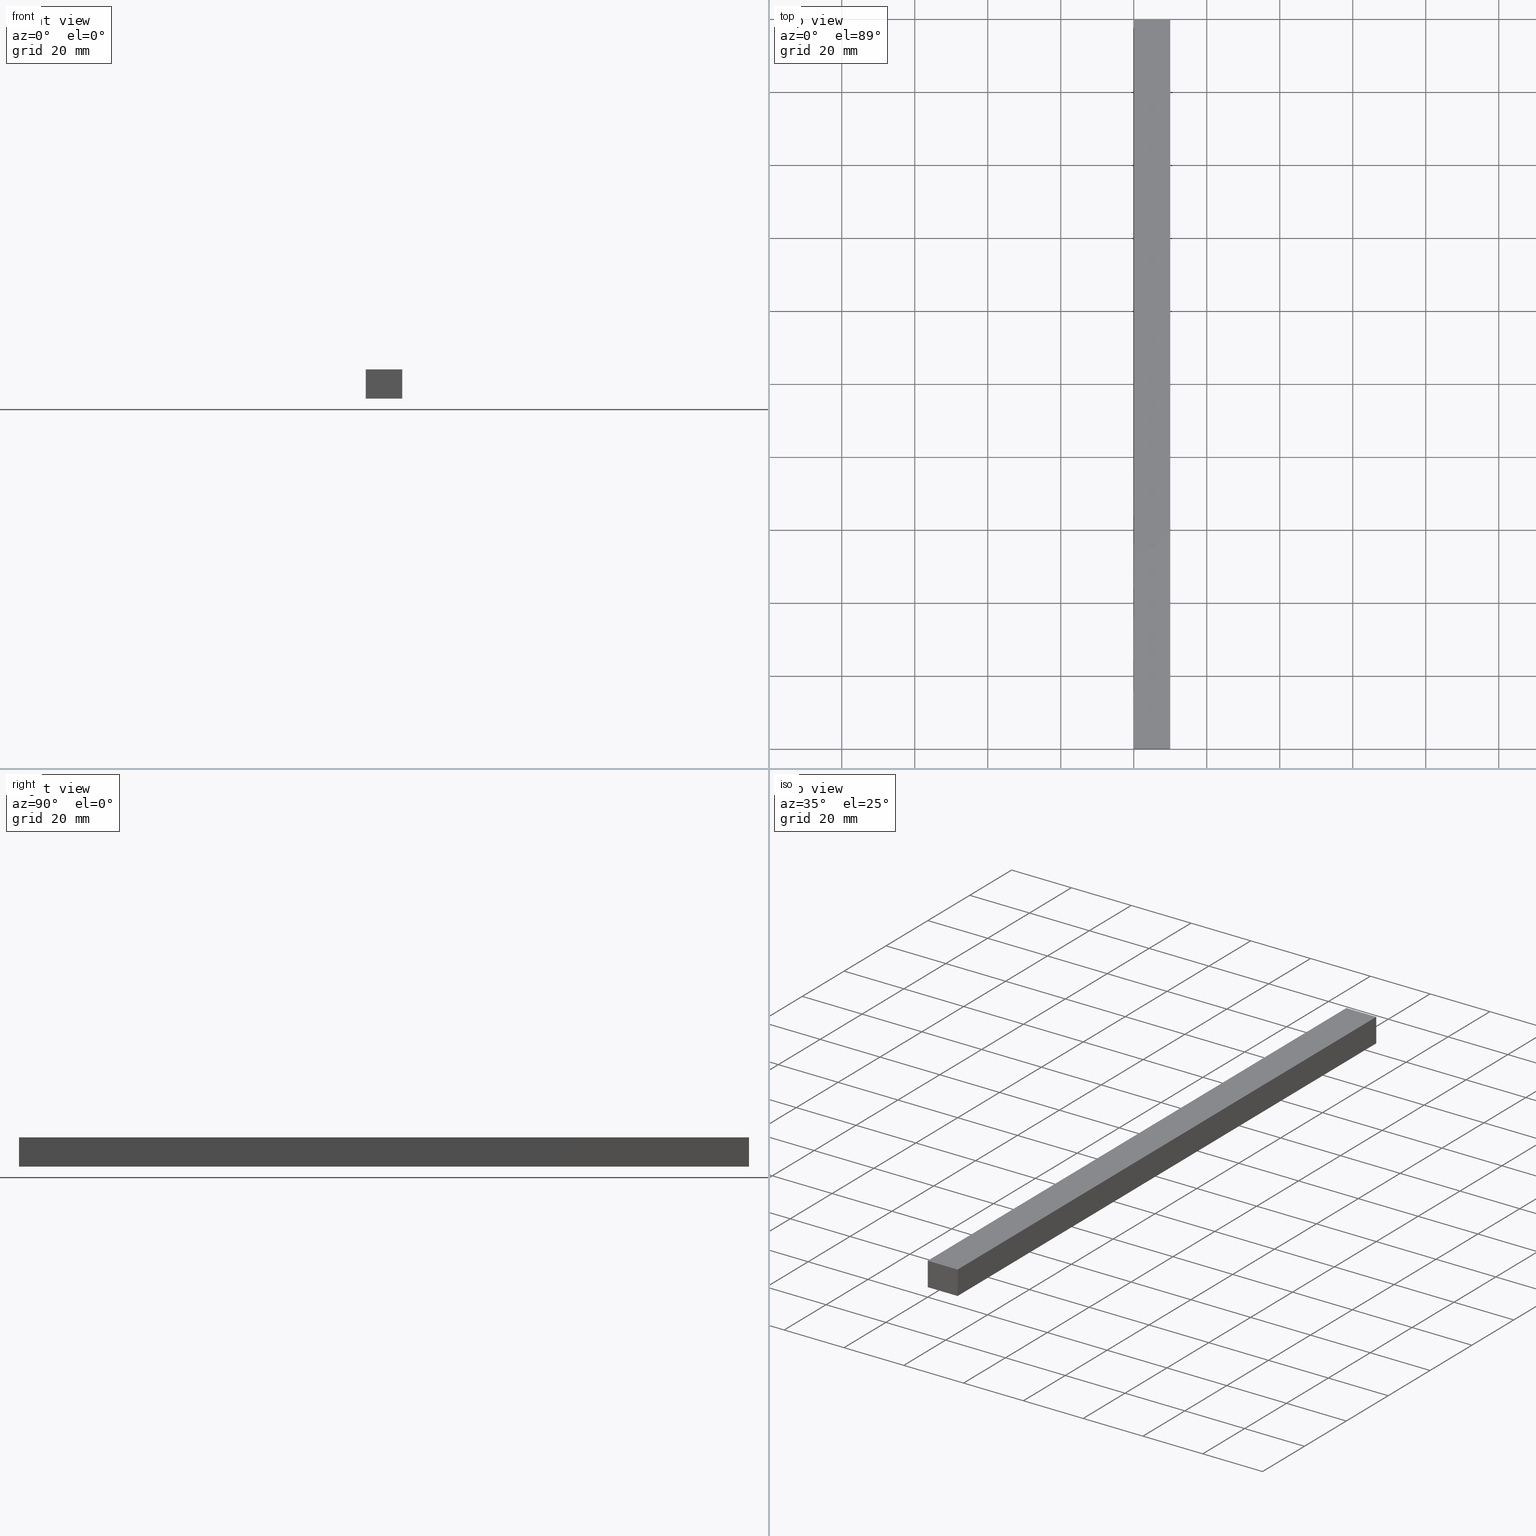
[diagram: canonical four-view strip — front | top / right | iso, engineering-drawing reading convention]
A machine part, canonical four-view strip (front | top / right | iso — engineering-drawing reading convention). The complete STEP part file that produces these views, byte-faithful:
ISO-10303-21;
HEADER;
FILE_DESCRIPTION (( 'STEP AP214' ),
    '1' );
FILE_NAME ('TM_339_8_10.STEP',
    '2016-05-09T04:30:46',
    ( '' ),
    ( '' ),
    'SwSTEP 2.0',
    'SolidWorks 2015',
    '' );
FILE_SCHEMA (( 'AUTOMOTIVE_DESIGN' ));
ENDSEC;

DATA;
#1 = LINE ( 'NONE', #70, #208 ) ;
#2 = EDGE_LOOP ( 'NONE', ( #189, #218, #87, #20 ) ) ;
#3 = ORIENTED_EDGE ( 'NONE', *, *, #96, .T. ) ;
#4 = AXIS2_PLACEMENT_3D ( 'NONE', #200, #177, #179 ) ;
#5 = FILL_AREA_STYLE ('',( #9 ) ) ;
#6 = LINE ( 'NONE', #137, #202 ) ;
#7 = VERTEX_POINT ( 'NONE', #26 ) ;
#8 = ORIENTED_EDGE ( 'NONE', *, *, #238, .F. ) ;
#9 = FILL_AREA_STYLE_COLOUR ( '', #169 ) ;
#10 = AXIS2_PLACEMENT_3D ( 'NONE', #119, #69, #13 ) ;
#11 = CARTESIAN_POINT ( 'NONE',  ( 0.0000000000000000000, 0.0000000000000000000, 0.0000000000000000000 ) ) ;
#12 = CARTESIAN_POINT ( 'NONE',  ( 0.0000000000000000000, 1000.000000000000000, 8.000000000000000000 ) ) ;
#13 = DIRECTION ( 'NONE',  ( 1.000000000000000000, 0.0000000000000000000, 0.0000000000000000000 ) ) ;
#14 = EDGE_CURVE ( 'NONE', #190, #72, #210, .T. ) ;
#15 = CARTESIAN_POINT ( 'NONE',  ( 0.0000000000000000000, 200.0000000000000000, 8.000000000000000000 ) ) ;
#16 = LINE ( 'NONE', #160, #207 ) ;
#17 = CARTESIAN_POINT ( 'NONE',  ( 0.0000000000000000000, 200.0000000000000000, 0.0000000000000000000 ) ) ;
#18 = APPLICATION_PROTOCOL_DEFINITION ( 'draft international standard', 'automotive_design', 1998, #138 ) ;
#19 = LINE ( 'NONE', #15, #142 ) ;
#20 = ORIENTED_EDGE ( 'NONE', *, *, #162, .F. ) ;
#21 = UNCERTAINTY_MEASURE_WITH_UNIT (LENGTH_MEASURE( 1.000000000000000100E-005 ), #167, 'distance_accuracy_value', 'NONE');
#22 =( NAMED_UNIT ( * ) SI_UNIT ( $, .STERADIAN. ) SOLID_ANGLE_UNIT ( ) );
#23 = PRESENTATION_LAYER_ASSIGNMENT (  '', '', ( #48 ) ) ;
#24 =( GEOMETRIC_REPRESENTATION_CONTEXT ( 3 ) GLOBAL_UNCERTAINTY_ASSIGNED_CONTEXT ( ( #188 ) ) GLOBAL_UNIT_ASSIGNED_CONTEXT ( ( #77, #212, #97 ) ) REPRESENTATION_CONTEXT ( 'NONE', 'WORKASPACE' ) );
#25 = SHAPE_REPRESENTATION ( 'TM_339_8_10', ( #89, #145 ), #159 ) ;
#26 = CARTESIAN_POINT ( 'NONE',  ( 10.00000000000000000, 200.0000000000000000, 8.000000000000000000 ) ) ;
#27 = SHAPE_REPRESENTATION ( 'rubber foam', ( #45 ), #24 ) ;
#28 = VERTEX_POINT ( 'NONE', #95 ) ;
#29 = ADVANCED_FACE ( 'NONE', ( #237 ), #172, .T. ) ;
#30 =( NAMED_UNIT ( * ) SI_UNIT ( $, .STERADIAN. ) SOLID_ANGLE_UNIT ( ) );
#31 = CARTESIAN_POINT ( 'NONE',  ( 0.0000000000000000000, 200.0000000000000000, 0.0000000000000000000 ) ) ;
#32 = DIRECTION ( 'NONE',  ( 0.0000000000000000000, -1.000000000000000000, 0.0000000000000000000 ) ) ;
#33 =( GEOMETRIC_REPRESENTATION_CONTEXT ( 3 ) GLOBAL_UNCERTAINTY_ASSIGNED_CONTEXT ( ( #98 ) ) GLOBAL_UNIT_ASSIGNED_CONTEXT ( ( #156, #78, #30 ) ) REPRESENTATION_CONTEXT ( 'NONE', 'WORKASPACE' ) );
#34 = LINE ( 'NONE', #178, #174 ) ;
#35 = CARTESIAN_POINT ( 'NONE',  ( 0.0000000000000000000, 0.0000000000000000000, 0.0000000000000000000 ) ) ;
#36 = PRODUCT_CONTEXT ( 'NONE', #51, 'mechanical' ) ;
#37 = AXIS2_PLACEMENT_3D ( 'NONE', #233, #181, #43 ) ;
#38 = VECTOR ( 'NONE', #215, 1000.000000000000000 ) ;
#39 = EDGE_CURVE ( 'NONE', #228, #28, #154, .T. ) ;
#40 = VERTEX_POINT ( 'NONE', #151 ) ;
#41 = LINE ( 'NONE', #217, #38 ) ;
#42 = ADVANCED_FACE ( 'NONE', ( #90 ), #173, .T. ) ;
#43 = DIRECTION ( 'NONE',  ( 1.000000000000000000, 0.0000000000000000000, 0.0000000000000000000 ) ) ;
#44 = ORIENTED_EDGE ( 'NONE', *, *, #124, .T. ) ;
#45 = AXIS2_PLACEMENT_3D ( 'NONE', #35, #136, #216 ) ;
#46 = DIRECTION ( 'NONE',  ( -0.0000000000000000000, 1.000000000000000000, 0.0000000000000000000 ) ) ;
#47 = PLANE ( 'NONE',  #37 ) ;
#48 = STYLED_ITEM ( 'NONE', ( #192 ), #165 ) ;
#49 = EDGE_CURVE ( 'NONE', #40, #143, #54, .T. ) ;
#50 = SURFACE_STYLE_USAGE ( .BOTH. , #122 ) ;
#51 = APPLICATION_CONTEXT ( 'automotive_design' ) ;
#52 = ITEM_DEFINED_TRANSFORMATION ( 'NONE', 'NONE', #145,  #45 ) ;
#53 = DIRECTION ( 'NONE',  ( 1.000000000000000000, 0.0000000000000000000, 0.0000000000000000000 ) ) ;
#54 = LINE ( 'NONE', #120, #66 ) ;
#55 = ORIENTED_EDGE ( 'NONE', *, *, #187, .T. ) ;
#56 = ORIENTED_EDGE ( 'NONE', *, *, #187, .F. ) ;
#57 = APPLICATION_PROTOCOL_DEFINITION ( 'draft international standard', 'automotive_design', 1998, #168 ) ;
#58 = UNCERTAINTY_MEASURE_WITH_UNIT (LENGTH_MEASURE( 1.000000000000000100E-005 ), #226, 'distance_accuracy_value', 'NONE');
#59 = FACE_OUTER_BOUND ( 'NONE', #209, .T. ) ;
#60 = ORIENTED_EDGE ( 'NONE', *, *, #49, .T. ) ;
#61 = ORIENTED_EDGE ( 'NONE', *, *, #64, .T. ) ;
#62 = STYLED_ITEM ( 'NONE', ( #76 ), #225 ) ;
#63 = VECTOR ( 'NONE', #32, 1000.000000000000000 ) ;
#64 = EDGE_CURVE ( 'NONE', #143, #228, #6, .T. ) ;
#65 = PRODUCT_DEFINITION_SHAPE ( 'NONE', 'NONE',  #129 ) ;
#66 = VECTOR ( 'NONE', #118, 1000.000000000000000 ) ;
#67 = DIRECTION ( 'NONE',  ( -0.0000000000000000000, -0.0000000000000000000, -1.000000000000000000 ) ) ;
#68 = PRODUCT_DEFINITION_CONTEXT ( 'detailed design', #168, 'design' ) ;
#69 = DIRECTION ( 'NONE',  ( 0.0000000000000000000, 0.0000000000000000000, 1.000000000000000000 ) ) ;
#70 = CARTESIAN_POINT ( 'NONE',  ( 0.0000000000000000000, 1000.000000000000000, 0.0000000000000000000 ) ) ;
#71 = DIRECTION ( 'NONE',  ( 0.0000000000000000000, 0.0000000000000000000, 1.000000000000000000 ) ) ;
#72 = VERTEX_POINT ( 'NONE', #229 ) ;
#73 = CARTESIAN_POINT ( 'NONE',  ( 0.0000000000000000000, 0.0000000000000000000, 0.0000000000000000000 ) ) ;
#74 = PRESENTATION_LAYER_ASSIGNMENT (  '', '', ( #62 ) ) ;
#75 = EDGE_CURVE ( 'NONE', #7, #91, #19, .T. ) ;
#76 = PRESENTATION_STYLE_ASSIGNMENT (( #50 ) ) ;
#77 =( LENGTH_UNIT ( ) NAMED_UNIT ( * ) SI_UNIT ( .MILLI., .METRE. ) );
#78 =( NAMED_UNIT ( * ) PLANE_ANGLE_UNIT ( ) SI_UNIT ( $, .RADIAN. ) );
#79 = DIRECTION ( 'NONE',  ( -0.0000000000000000000, -0.0000000000000000000, 1.000000000000000000 ) ) ;
#80 = MECHANICAL_DESIGN_GEOMETRIC_PRESENTATION_REPRESENTATION (  '', ( #62 ), #93 ) ;
#81 = PLANE ( 'NONE',  #4 ) ;
#82 = LINE ( 'NONE', #31, #115 ) ;
#83 = FILL_AREA_STYLE_COLOUR ( '', #221 ) ;
#84 = DIRECTION ( 'NONE',  ( -1.000000000000000000, -0.0000000000000000000, -0.0000000000000000000 ) ) ;
#85 = DIRECTION ( 'NONE',  ( 0.0000000000000000000, -1.000000000000000000, 0.0000000000000000000 ) ) ;
#86 = DIRECTION ( 'NONE',  ( 0.0000000000000000000, 0.0000000000000000000, 1.000000000000000000 ) ) ;
#87 = ORIENTED_EDGE ( 'NONE', *, *, #75, .F. ) ;
#88 = PRODUCT_DEFINITION_SHAPE ( 'NONE', 'NONE',  #239 ) ;
#89 = AXIS2_PLACEMENT_3D ( 'NONE', #180, #195, #111 ) ;
#90 = FACE_OUTER_BOUND ( 'NONE', #2, .T. ) ;
#91 = VERTEX_POINT ( 'NONE', #123 ) ;
#92 = VECTOR ( 'NONE', #114, 1000.000000000000000 ) ;
#93 =( GEOMETRIC_REPRESENTATION_CONTEXT ( 3 ) GLOBAL_UNCERTAINTY_ASSIGNED_CONTEXT ( ( #58 ) ) GLOBAL_UNIT_ASSIGNED_CONTEXT ( ( #226, #102, #235 ) ) REPRESENTATION_CONTEXT ( 'NONE', 'WORKASPACE' ) );
#94 = DIRECTION ( 'NONE',  ( 0.0000000000000000000, 0.0000000000000000000, -1.000000000000000000 ) ) ;
#95 = CARTESIAN_POINT ( 'NONE',  ( 10.00000000000000000, 0.0000000000000000000, 8.000000000000000000 ) ) ;
#96 = EDGE_CURVE ( 'NONE', #190, #143, #1, .T. ) ;
#97 =( NAMED_UNIT ( * ) SI_UNIT ( $, .STERADIAN. ) SOLID_ANGLE_UNIT ( ) );
#98 = UNCERTAINTY_MEASURE_WITH_UNIT (LENGTH_MEASURE( 1.000000000000000100E-005 ), #156, 'distance_accuracy_value', 'NONE');
#99 = ADVANCED_FACE ( 'NONE', ( #59 ), #105, .T. ) ;
#100 = SHAPE_DEFINITION_REPRESENTATION ( #170, #27 ) ;
#101 = ORIENTED_EDGE ( 'NONE', *, *, #224, .F. ) ;
#102 =( NAMED_UNIT ( * ) PLANE_ANGLE_UNIT ( ) SI_UNIT ( $, .RADIAN. ) );
#103 = ORIENTED_EDGE ( 'NONE', *, *, #224, .T. ) ;
#104 = DIRECTION ( 'NONE',  ( -1.000000000000000000, -0.0000000000000000000, -0.0000000000000000000 ) ) ;
#105 = PLANE ( 'NONE',  #206 ) ;
#106 = DIRECTION ( 'NONE',  ( -0.0000000000000000000, -0.0000000000000000000, 1.000000000000000000 ) ) ;
#107 = PRODUCT_DEFINITION ( 'UNKNOWN', '', #171, #68 ) ;
#108 = VECTOR ( 'NONE', #106, 1000.000000000000000 ) ;
#109 = EDGE_LOOP ( 'NONE', ( #222, #197, #157, #185 ) ) ;
#110 = ORIENTED_EDGE ( 'NONE', *, *, #39, .F. ) ;
#111 = DIRECTION ( 'NONE',  ( 1.000000000000000000, 0.0000000000000000000, 0.0000000000000000000 ) ) ;
#112 = LINE ( 'NONE', #231, #63 ) ;
#113 = FACE_OUTER_BOUND ( 'NONE', #149, .T. ) ;
#114 = DIRECTION ( 'NONE',  ( 1.000000000000000000, -0.0000000000000000000, -0.0000000000000000000 ) ) ;
#115 = VECTOR ( 'NONE', #67, 1000.000000000000000 ) ;
#116 = EDGE_LOOP ( 'NONE', ( #110, #8, #198, #55 ) ) ;
#117 = ADVANCED_FACE ( 'NONE', ( #128 ), #81, .T. ) ;
#118 = DIRECTION ( 'NONE',  ( -0.0000000000000000000, -0.0000000000000000000, -1.000000000000000000 ) ) ;
#119 = CARTESIAN_POINT ( 'NONE',  ( 10.00000000000000000, 1000.000000000000000, 8.000000000000000000 ) ) ;
#120 = CARTESIAN_POINT ( 'NONE',  ( 0.0000000000000000000, 0.0000000000000000000, 0.0000000000000000000 ) ) ;
#121 = DIRECTION ( 'NONE',  ( 1.000000000000000000, -0.0000000000000000000, -0.0000000000000000000 ) ) ;
#122 = SURFACE_SIDE_STYLE ('',( #166 ) ) ;
#123 = CARTESIAN_POINT ( 'NONE',  ( 0.0000000000000000000, 200.0000000000000000, 8.000000000000000000 ) ) ;
#124 = EDGE_CURVE ( 'NONE', #28, #40, #223, .T. ) ;
#125 = APPLICATION_PROTOCOL_DEFINITION ( 'draft international standard', 'automotive_design', 1998, #220 ) ;
#126 = AXIS2_PLACEMENT_3D ( 'NONE', #199, #46, #232 ) ;
#127 =( REPRESENTATION_RELATIONSHIP ('NONE','NONE', #25, #27 ) REPRESENTATION_RELATIONSHIP_WITH_TRANSFORMATION ( #52 )SHAPE_REPRESENTATION_RELATIONSHIP( ) );
#128 = FACE_OUTER_BOUND ( 'NONE', #116, .T. ) ;
#129 = PRODUCT_DEFINITION ( 'UNKNOWN', '', #140, #201 ) ;
#130 = AXIS2_PLACEMENT_3D ( 'NONE', #219, #86, #205 ) ;
#131 = CARTESIAN_POINT ( 'NONE',  ( 0.0000000000000000000, 200.0000000000000000, 0.0000000000000000000 ) ) ;
#132 = AXIS2_PLACEMENT_3D ( 'NONE', #191, #94, #152 ) ;
#133 = SURFACE_SIDE_STYLE ('',( #182 ) ) ;
#134 = PLANE ( 'NONE',  #10 ) ;
#135 = ORIENTED_EDGE ( 'NONE', *, *, #75, .T. ) ;
#136 = DIRECTION ( 'NONE',  ( 0.0000000000000000000, 0.0000000000000000000, 1.000000000000000000 ) ) ;
#137 = CARTESIAN_POINT ( 'NONE',  ( 0.0000000000000000000, 0.0000000000000000000, 0.0000000000000000000 ) ) ;
#138 = APPLICATION_CONTEXT ( 'automotive_design' ) ;
#139 =( NAMED_UNIT ( * ) PLANE_ANGLE_UNIT ( ) SI_UNIT ( $, .RADIAN. ) );
#140 = PRODUCT_DEFINITION_FORMATION_WITH_SPECIFIED_SOURCE ( 'ANY', '', #211, .NOT_KNOWN. ) ;
#141 = CONTEXT_DEPENDENT_SHAPE_REPRESENTATION ( #127, #88 ) ;
#142 = VECTOR ( 'NONE', #84, 1000.000000000000000 ) ;
#143 = VERTEX_POINT ( 'NONE', #11 ) ;
#144 = ORIENTED_EDGE ( 'NONE', *, *, #49, .F. ) ;
#145 = AXIS2_PLACEMENT_3D ( 'NONE', #73, #183, #53 ) ;
#146 = EDGE_CURVE ( 'NONE', #91, #190, #82, .T. ) ;
#147 = SHAPE_DEFINITION_REPRESENTATION ( #65, #25 ) ;
#148 = SHAPE_REPRESENTATION_RELATIONSHIP ( 'NONE' , 'NONE' ,  #27, #225 ) ;
#149 = EDGE_LOOP ( 'NONE', ( #61, #204, #44, #60 ) ) ;
#150 = CLOSED_SHELL ( 'NONE', ( #29, #117, #176, #99, #42, #194 ) ) ;
#151 = CARTESIAN_POINT ( 'NONE',  ( 0.0000000000000000000, 0.0000000000000000000, 8.000000000000000000 ) ) ;
#152 = DIRECTION ( 'NONE',  ( -1.000000000000000000, 0.0000000000000000000, 0.0000000000000000000 ) ) ;
#153 = CARTESIAN_POINT ( 'NONE',  ( 10.00000000000000000, 0.0000000000000000000, 0.0000000000000000000 ) ) ;
#154 = LINE ( 'NONE', #153, #108 ) ;
#155 = ORIENTED_EDGE ( 'NONE', *, *, #146, .T. ) ;
#156 =( LENGTH_UNIT ( ) NAMED_UNIT ( * ) SI_UNIT ( .MILLI., .METRE. ) );
#157 = ORIENTED_EDGE ( 'NONE', *, *, #14, .T. ) ;
#158 = PRODUCT_RELATED_PRODUCT_CATEGORY ( 'part', '', ( #211 ) ) ;
#159 =( GEOMETRIC_REPRESENTATION_CONTEXT ( 3 ) GLOBAL_UNCERTAINTY_ASSIGNED_CONTEXT ( ( #21 ) ) GLOBAL_UNIT_ASSIGNED_CONTEXT ( ( #167, #139, #22 ) ) REPRESENTATION_CONTEXT ( 'NONE', 'WORKASPACE' ) );
#160 = CARTESIAN_POINT ( 'NONE',  ( 10.00000000000000000, 1000.000000000000000, 0.0000000000000000000 ) ) ;
#161 = FILL_AREA_STYLE ('',( #83 ) ) ;
#162 = EDGE_CURVE ( 'NONE', #72, #7, #34, .T. ) ;
#163 = APPLICATION_PROTOCOL_DEFINITION ( 'draft international standard', 'automotive_design', 1998, #51 ) ;
#164 = MECHANICAL_DESIGN_GEOMETRIC_PRESENTATION_REPRESENTATION (  '', ( #48 ), #33 ) ;
#165 = MANIFOLD_SOLID_BREP ( '���߰�1', #150 ) ;
#166 = SURFACE_STYLE_FILL_AREA ( #161 ) ;
#167 =( LENGTH_UNIT ( ) NAMED_UNIT ( * ) SI_UNIT ( .MILLI., .METRE. ) );
#168 = APPLICATION_CONTEXT ( 'automotive_design' ) ;
#169 = COLOUR_RGB ( '',0.7921568627450980000, 0.8196078431372548800, 0.9333333333333333500 ) ;
#170 = PRODUCT_DEFINITION_SHAPE ( 'NONE', 'NONE',  #107 ) ;
#171 = PRODUCT_DEFINITION_FORMATION_WITH_SPECIFIED_SOURCE ( 'ANY', '', #193, .NOT_KNOWN. ) ;
#172 = PLANE ( 'NONE',  #132 ) ;
#173 = PLANE ( 'NONE',  #126 ) ;
#174 = VECTOR ( 'NONE', #79, 1000.000000000000000 ) ;
#175 = FACE_OUTER_BOUND ( 'NONE', #236, .T. ) ;
#176 = ADVANCED_FACE ( 'NONE', ( #175 ), #134, .T. ) ;
#177 = DIRECTION ( 'NONE',  ( 1.000000000000000000, 0.0000000000000000000, 0.0000000000000000000 ) ) ;
#178 = CARTESIAN_POINT ( 'NONE',  ( 10.00000000000000000, 200.0000000000000000, 0.0000000000000000000 ) ) ;
#179 = DIRECTION ( 'NONE',  ( 0.0000000000000000000, 0.0000000000000000000, -1.000000000000000000 ) ) ;
#180 = CARTESIAN_POINT ( 'NONE',  ( 0.0000000000000000000, 0.0000000000000000000, 0.0000000000000000000 ) ) ;
#181 = DIRECTION ( 'NONE',  ( -0.0000000000000000000, 1.000000000000000000, 0.0000000000000000000 ) ) ;
#182 = SURFACE_STYLE_FILL_AREA ( #5 ) ;
#183 = DIRECTION ( 'NONE',  ( 0.0000000000000000000, 0.0000000000000000000, 1.000000000000000000 ) ) ;
#184 = PRODUCT_RELATED_PRODUCT_CATEGORY ( 'part', '', ( #193 ) ) ;
#185 = ORIENTED_EDGE ( 'NONE', *, *, #238, .T. ) ;
#186 = VECTOR ( 'NONE', #104, 1000.000000000000000 ) ;
#187 = EDGE_CURVE ( 'NONE', #7, #28, #41, .T. ) ;
#188 = UNCERTAINTY_MEASURE_WITH_UNIT (LENGTH_MEASURE( 1.000000000000000100E-005 ), #77, 'distance_accuracy_value', 'NONE');
#189 = ORIENTED_EDGE ( 'NONE', *, *, #14, .F. ) ;
#190 = VERTEX_POINT ( 'NONE', #17 ) ;
#191 = CARTESIAN_POINT ( 'NONE',  ( 0.0000000000000000000, 1000.000000000000000, 0.0000000000000000000 ) ) ;
#192 = PRESENTATION_STYLE_ASSIGNMENT (( #227 ) ) ;
#193 = PRODUCT ( 'rubber foam', 'rubber foam', '', ( #234 ) ) ;
#194 = ADVANCED_FACE ( 'NONE', ( #113 ), #47, .F. ) ;
#195 = DIRECTION ( 'NONE',  ( 0.0000000000000000000, 0.0000000000000000000, 1.000000000000000000 ) ) ;
#196 = CARTESIAN_POINT ( 'NONE',  ( 10.00000000000000000, 0.0000000000000000000, 0.0000000000000000000 ) ) ;
#197 = ORIENTED_EDGE ( 'NONE', *, *, #96, .F. ) ;
#198 = ORIENTED_EDGE ( 'NONE', *, *, #162, .T. ) ;
#199 = CARTESIAN_POINT ( 'NONE',  ( 0.0000000000000000000, 200.0000000000000000, 0.0000000000000000000 ) ) ;
#200 = CARTESIAN_POINT ( 'NONE',  ( 10.00000000000000000, 1000.000000000000000, 0.0000000000000000000 ) ) ;
#201 = PRODUCT_DEFINITION_CONTEXT ( 'detailed design', #138, 'design' ) ;
#202 = VECTOR ( 'NONE', #121, 1000.000000000000000 ) ;
#203 = ORIENTED_EDGE ( 'NONE', *, *, #124, .F. ) ;
#204 = ORIENTED_EDGE ( 'NONE', *, *, #39, .T. ) ;
#205 = DIRECTION ( 'NONE',  ( 1.000000000000000000, 0.0000000000000000000, 0.0000000000000000000 ) ) ;
#206 = AXIS2_PLACEMENT_3D ( 'NONE', #12, #230, #71 ) ;
#207 = VECTOR ( 'NONE', #213, 1000.000000000000000 ) ;
#208 = VECTOR ( 'NONE', #85, 1000.000000000000000 ) ;
#209 = EDGE_LOOP ( 'NONE', ( #144, #101, #155, #3 ) ) ;
#210 = LINE ( 'NONE', #131, #92 ) ;
#211 = PRODUCT ( 'TM_339_8_10', 'TM_339_8_10', '', ( #36 ) ) ;
#212 =( NAMED_UNIT ( * ) PLANE_ANGLE_UNIT ( ) SI_UNIT ( $, .RADIAN. ) );
#213 = DIRECTION ( 'NONE',  ( 0.0000000000000000000, -1.000000000000000000, 0.0000000000000000000 ) ) ;
#214 = CARTESIAN_POINT ( 'NONE',  ( 0.0000000000000000000, 0.0000000000000000000, 8.000000000000000000 ) ) ;
#215 = DIRECTION ( 'NONE',  ( 0.0000000000000000000, -1.000000000000000000, 0.0000000000000000000 ) ) ;
#216 = DIRECTION ( 'NONE',  ( 1.000000000000000000, 0.0000000000000000000, 0.0000000000000000000 ) ) ;
#217 = CARTESIAN_POINT ( 'NONE',  ( 10.00000000000000000, 1000.000000000000000, 8.000000000000000000 ) ) ;
#218 = ORIENTED_EDGE ( 'NONE', *, *, #146, .F. ) ;
#219 = CARTESIAN_POINT ( 'NONE',  ( 0.0000000000000000000, 0.0000000000000000000, 0.0000000000000000000 ) ) ;
#220 = APPLICATION_CONTEXT ( 'automotive_design' ) ;
#221 = COLOUR_RGB ( '',0.7921568627450980000, 0.8196078431372548800, 0.9333333333333333500 ) ;
#222 = ORIENTED_EDGE ( 'NONE', *, *, #64, .F. ) ;
#223 = LINE ( 'NONE', #214, #186 ) ;
#224 = EDGE_CURVE ( 'NONE', #91, #40, #112, .T. ) ;
#225 = ADVANCED_BREP_SHAPE_REPRESENTATION ( '', ( #165, #45 ), #24 ) ;
#226 =( LENGTH_UNIT ( ) NAMED_UNIT ( * ) SI_UNIT ( .MILLI., .METRE. ) );
#227 = SURFACE_STYLE_USAGE ( .BOTH. , #133 ) ;
#228 = VERTEX_POINT ( 'NONE', #196 ) ;
#229 = CARTESIAN_POINT ( 'NONE',  ( 10.00000000000000000, 200.0000000000000000, 0.0000000000000000000 ) ) ;
#230 = DIRECTION ( 'NONE',  ( -1.000000000000000000, 0.0000000000000000000, 0.0000000000000000000 ) ) ;
#231 = CARTESIAN_POINT ( 'NONE',  ( 0.0000000000000000000, 1000.000000000000000, 8.000000000000000000 ) ) ;
#232 = DIRECTION ( 'NONE',  ( 1.000000000000000000, 0.0000000000000000000, 0.0000000000000000000 ) ) ;
#233 = CARTESIAN_POINT ( 'NONE',  ( 0.0000000000000000000, 0.0000000000000000000, 0.0000000000000000000 ) ) ;
#234 = PRODUCT_CONTEXT ( 'NONE', #220, 'mechanical' ) ;
#235 =( NAMED_UNIT ( * ) SI_UNIT ( $, .STERADIAN. ) SOLID_ANGLE_UNIT ( ) );
#236 = EDGE_LOOP ( 'NONE', ( #203, #56, #135, #103 ) ) ;
#237 = FACE_OUTER_BOUND ( 'NONE', #109, .T. ) ;
#238 = EDGE_CURVE ( 'NONE', #72, #228, #16, .T. ) ;
#239 = NEXT_ASSEMBLY_USAGE_OCCURRENCE ( 'NAUO1', ' ', ' ', #129, #107, $ ) ;
ENDSEC;
END-ISO-10303-21;
